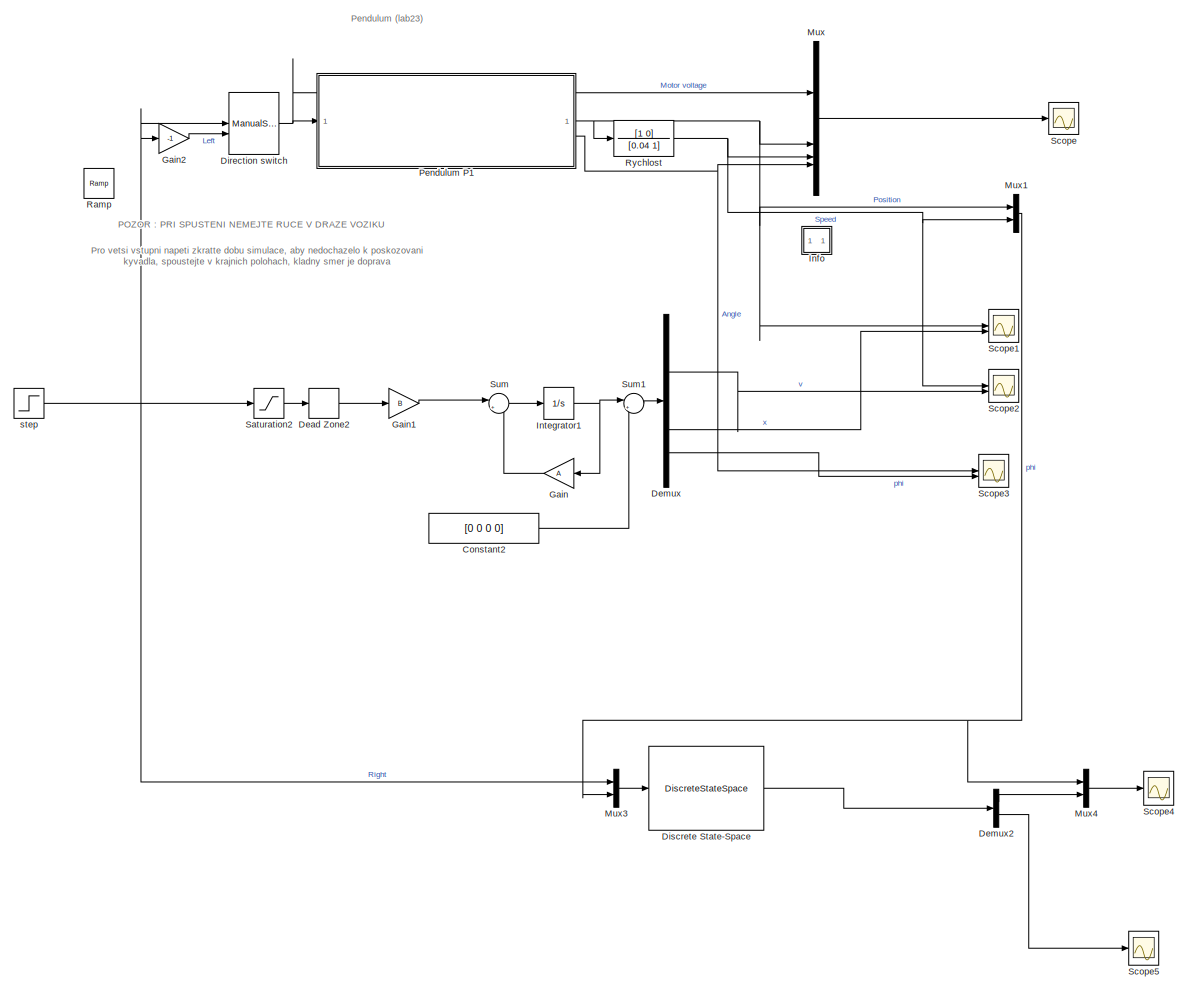
[diagram: root canvas - part 1/1, most of the canvas]
MODEL slx_358f6d5180ab
KIND model
CONFIG AbsTol = auto
CONFIG EnableMultiTasking = off
CONFIG FixedStep = auto
CONFIG MaxStep = auto
CONFIG MinStep = auto
CONFIG RelTol = 1e-3
CONFIG SampleTimeConstraint = Unconstrained
CONFIG SolverName = VariableStepAuto
CONFIG StartTime = 0.0
CONFIG StopTime = 10.0
BLOCK [Constant] Constant2
  Value = [0 0 0 0]
BLOCK [DeadZone] Dead Zone2
  LowerValue = -0.11
  UpperValue = 0.11
BLOCK [Demux] Demux
  DisplayOption = none
BLOCK [Demux] Demux2
  Outputs = [1,2]
BLOCK [ManualSwitch] Direction switch
BLOCK [DiscreteStateSpace] Discrete State-Space
  A = kalmf.A
  B = kalmf.B
  C = kalmf.C
  D = kalmf.D
  InitialCondition = [0.2,0]
  SampleTime = kalmf.Ts
BLOCK [Gain] Gain
  Gain = A
  Multiplication = Matrix(K*u)
  NameLocation = top
BLOCK [Gain] Gain1
  Gain = B
  Multiplication = Matrix(K*u)
BLOCK [Gain] Gain2
  Gain = -1
BLOCK [SubSystem] Info
BLOCK [Integrator] Integrator1
  InitialCondition = [0,0,0,0]
  LimitOutput = on
  LowerSaturationLimit = -[inf, 0.35, inf, inf]
  UpperSaturationLimit = [inf, 0.35, inf, inf]
BLOCK [Mux] Mux
  DisplayOption = bar
BLOCK [Mux] Mux1
  DisplayOption = bar
  Inputs = 2
BLOCK [Mux] Mux3
  DisplayOption = bar
  Inputs = 2
BLOCK [Mux] Mux4
  DisplayOption = bar
  Inputs = 2
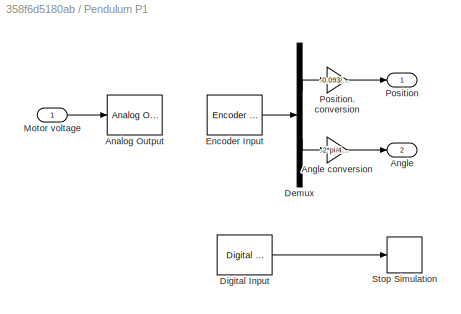
BLOCK [SubSystem] Pendulum P1
  InitFcn = warning off;
BLOCK [Reference] Pendulum P1/Analog Output  REF=sldrtlib/Analog Output
  AttributesFormatString = Humusoft\nMF624 [auto]
  SourceBlock = sldrtlib/Analog Output
  SourceType = Simulink Desktop Real-Time Analog Output
BLOCK [Outport] Pendulum P1/Angle
  Port = 2
BLOCK [Gain] Pendulum P1/Angle conversion
  Gain = -2*pi/4096
BLOCK [Demux] Pendulum P1/Demux
  DisplayOption = none
  Outputs = 2
BLOCK [Reference] Pendulum P1/Digital Input  REF=sldrtlib/Digital Input
  AttributesFormatString = Humusoft\nMF624 [auto]
  SourceBlock = sldrtlib/Digital Input
  SourceType = Simulink Desktop Real-Time Digital Input
BLOCK [Reference] Pendulum P1/Encoder Input  REF=sldrtlib/Encoder Input
  AttributesFormatString = Humusoft\nMF624 [auto]
  SourceBlock = sldrtlib/Encoder Input
  SourceType = Simulink Desktop Real-Time Encoder Input
BLOCK [Inport] Pendulum P1/Motor voltage
BLOCK [Outport] Pendulum P1/Position
BLOCK [Gain] Pendulum P1/Position. conversion
  Gain = -0.093/4096
BLOCK [Stop] Pendulum P1/Stop Simulation
BLOCK [Reference] Ramp  REF=simulink/Sources/Ramp
  SourceBlock = simulink/Sources/Ramp
  SourceType = Ramp
BLOCK [TransferFcn] Rychlost
  Denominator = [0.04 1]
  Numerator = [1 0]
BLOCK [Saturate] Saturation2
  LowerLimit = -1
  UpperLimit = 1
BLOCK [Scope] Scope
  Floating = off
  NumInputPorts = 1
  ScopeSpecificationString = Simulink.scopes.TimeScopeBlockCfg('CurrentConfiguration', extmgr.ConfigurationSet(extmgr.Configuration('Core','General UI',true,'FigureColor',[0.501960784313725 0.501960784313725 0.501960784313725]),extmgr.Configuration('Core','Source UI',true),extmgr.Configuration('Sources','WiredSimulink',true,'DataLogging',true,'DataLoggingMaxPoints','500000','DataLoggingLimitDataPoints',true,'DataLoggingSaveFo...<+2772ch>
BLOCK [Scope] Scope1
  Floating = off
  NumInputPorts = 2
  ScopeSpecificationString = Simulink.scopes.TimeScopeBlockCfg('CurrentConfiguration', extmgr.ConfigurationSet(extmgr.Configuration('Core','General UI',true),extmgr.Configuration('Core','Source UI',true),extmgr.Configuration('Sources','WiredSimulink',true,'DataLoggingVariableName','ScopeData1'),extmgr.Configuration('Visuals','Time Domain',true,'SerializedDisplays',{struct('MinYLimReal','-0.04236','MaxYLimReal','0.38128','YLab...<+1371ch>
BLOCK [Scope] Scope2
  Floating = off
  NumInputPorts = 2
  ScopeSpecificationString = Simulink.scopes.TimeScopeBlockCfg('CurrentConfiguration', extmgr.ConfigurationSet(extmgr.Configuration('Core','General UI',true),extmgr.Configuration('Core','Source UI',true),extmgr.Configuration('Sources','WiredSimulink',true,'DataLoggingVariableName','ScopeData2'),extmgr.Configuration('Visuals','Time Domain',true,'SerializedDisplays',{struct('MinYLimReal','-0.03968','MaxYLimReal','0.35708','YLab...<+1395ch>
BLOCK [Scope] Scope3
  Floating = off
  NumInputPorts = 2
  ScopeSpecificationString = Simulink.scopes.TimeScopeBlockCfg('CurrentConfiguration', extmgr.ConfigurationSet(extmgr.Configuration('Core','General UI',true),extmgr.Configuration('Core','Source UI',true),extmgr.Configuration('Sources','WiredSimulink',true,'DataLoggingVariableName','ScopeData3'),extmgr.Configuration('Visuals','Time Domain',true,'SerializedDisplays',{struct('MinYLimReal','-0.1022','MaxYLimReal','0.04544','YLabe...<+1394ch>
BLOCK [Scope] Scope4
  Floating = off
  NumInputPorts = 1
  ScopeSpecificationString = Simulink.scopes.TimeScopeBlockCfg('CurrentConfiguration', extmgr.ConfigurationSet(extmgr.Configuration('Core','General UI',true),extmgr.Configuration('Core','Source UI',true),extmgr.Configuration('Sources','WiredSimulink',true,'DataLoggingVariableName','ScopeData1'),extmgr.Configuration('Visuals','Time Domain',true,'SerializedDisplays',{struct('MinYLimReal','-0.00002','MaxYLimReal','0.00014','YLab...<+1384ch>
BLOCK [Scope] Scope5
  Floating = off
  NumInputPorts = 1
  ScopeSpecificationString = Simulink.scopes.TimeScopeBlockCfg('CurrentConfiguration', extmgr.ConfigurationSet(extmgr.Configuration('Core','General UI',true),extmgr.Configuration('Core','Source UI',true),extmgr.Configuration('Sources','WiredSimulink',true,'DataLoggingVariableName','ScopeData2'),extmgr.Configuration('Visuals','Time Domain',true,'SerializedDisplays',{struct('MinYLimReal','-0.00002','MaxYLimReal','0.00014','YLab...<+1384ch>
BLOCK [Sum] Sum
  Inputs = |++
BLOCK [Sum] Sum1
  Inputs = |+-
BLOCK [Step] step
  After = 0.2
  SampleTime = 0
ANNOTATION (root): POZOR : PRI SPUSTENI NEMEJTE RUCE V DRAZE VOZIKU
ANNOTATION (root): Pendulum (lab23)
ANNOTATION (root): Pro vetsi vstupni napeti zkratte dobu simulace, aby nedochazelo k poskozovani kyvadla, spoustejte v krajnich polohach, kladny smer je doprava
ANNOTATION Info: C: J.Fuka 2007-2015 pro Matlab 2014b s RTWT
ANNOTATION Info: Kyvadlo P1 (lab. 23)
ANNOTATION Info: Merena data jsou ukladana po radcich do matice ty v pracovnim prostoru Matlabu. Prvni sloupec matice ty predstavuje cas a dalsi pak jednotlive promenne v poradi vstupu do bloku multiplexoru osciloskopu. Krome toho je jeste k dispozici samotny vektor casu tout. Prubehy velicin zobrazite napr. prikazem: plot(ty(:,1),ty(:,2:4)).
ANNOTATION Info: Nezapomente si ulozit namerena data napr. prikazem: save ty
ANNOTATION Info: Umisteni voziku
ANNOTATION Info: Urceno pro mereni prechodovych charakteristik realneho systemu inverzni kyvadlo. Periodu vzorkovani Ts volte v rozsahu 0.0005 s < Ts < 0.001 s (dop. Ts = 0.001 s).
ANNOTATION Info: Ve formatu ASCII je pak ulozite prikazem: save ty -ascii
ANNOTATION Info: Vozik presunte do leve krajni polohy. Po spusteni simulace dojede k prave krajni poloze. Presunte jej ke koncovemu spinaci a zmente znamenko zesileni. Vozik se vrati do vychozi polohy. Pri vetsim vstupnim napeti zkratte dobu simulace!!!
LINE Constant2:1 -> Sum1:2
LINE Dead Zone2:1 -> Gain1:1
LINE Demux2:1 -> Mux4:2
LINE Demux2:2 -> Scope5:1
LINE Demux:1 -> Scope2:2
LINE Demux:2 -> Scope1:2
LINE Demux:4 -> Scope3:2
NET Direction switch:1 -> Mux:1, Pendulum P1:1
LINE Discrete State-Space:1 -> Demux2:1
LINE Gain1:1 -> Sum:1
LINE Gain2:1 -> Direction switch:2
LINE Gain:1 -> Sum:2
NET Integrator1:1 -> Gain:1, Sum1:1
NET Mux1:1 -> Mux3:2, Mux4:1
LINE Mux3:1 -> Discrete State-Space:1
LINE Mux4:1 -> Scope4:1
LINE Mux:1 -> Scope:1
LINE Pendulum P1/Angle conversion:1 -> Pendulum P1/Angle:1
LINE Pendulum P1/Demux:1 -> Pendulum P1/Position. conversion:1
LINE Pendulum P1/Demux:2 -> Pendulum P1/Angle conversion:1
LINE Pendulum P1/Digital Input:1 -> Pendulum P1/Stop Simulation:1
LINE Pendulum P1/Encoder Input:1 -> Pendulum P1/Demux:1
LINE Pendulum P1/Motor voltage:1 -> Pendulum P1/Analog Output:1
LINE Pendulum P1/Position. conversion:1 -> Pendulum P1/Position:1
NET Pendulum P1:1 -> Mux1:1, Mux:2, Rychlost:1, Scope1:1
NET Pendulum P1:2 -> Mux:4, Scope3:1
NET Rychlost:1 -> Mux1:2, Mux:3, Scope2:1
LINE Saturation2:1 -> Dead Zone2:1
LINE Sum1:1 -> Demux:1
LINE Sum:1 -> Integrator1:1
NET step:1 -> Direction switch:1, Gain2:1, Mux3:1, Saturation2:1
note: NET lines group one-source signal fan-out (src -> all destinations, sorted); 1:1 wires keep LINE
